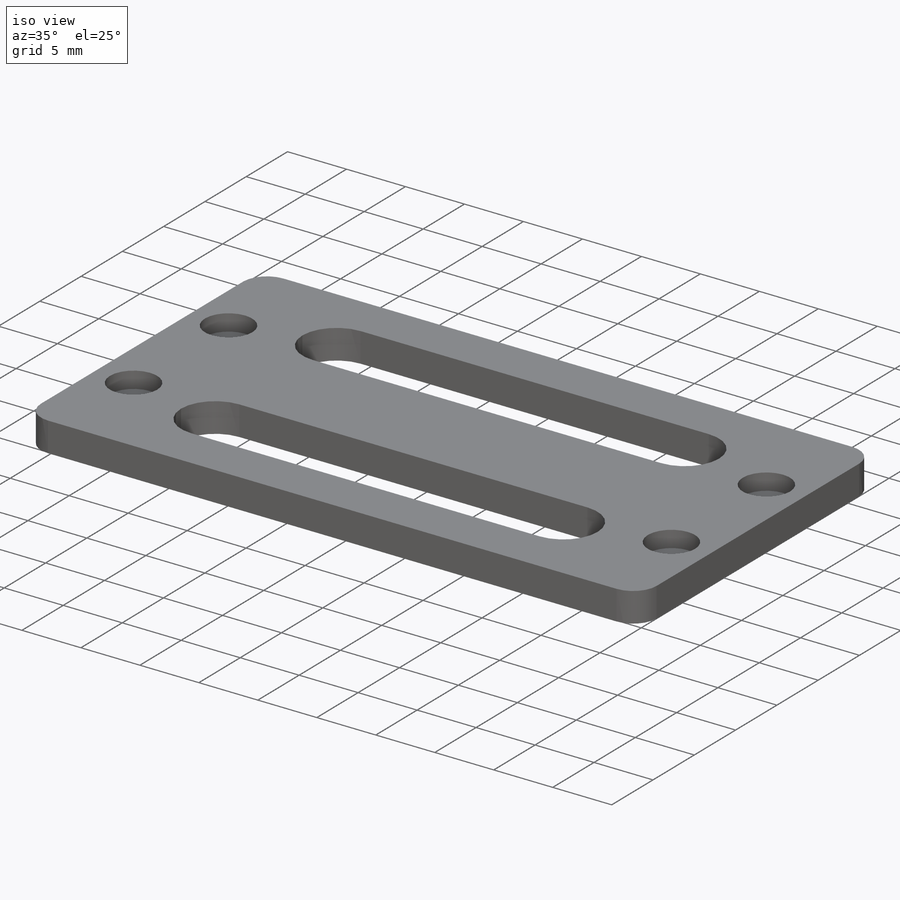
[diagram: iso view]
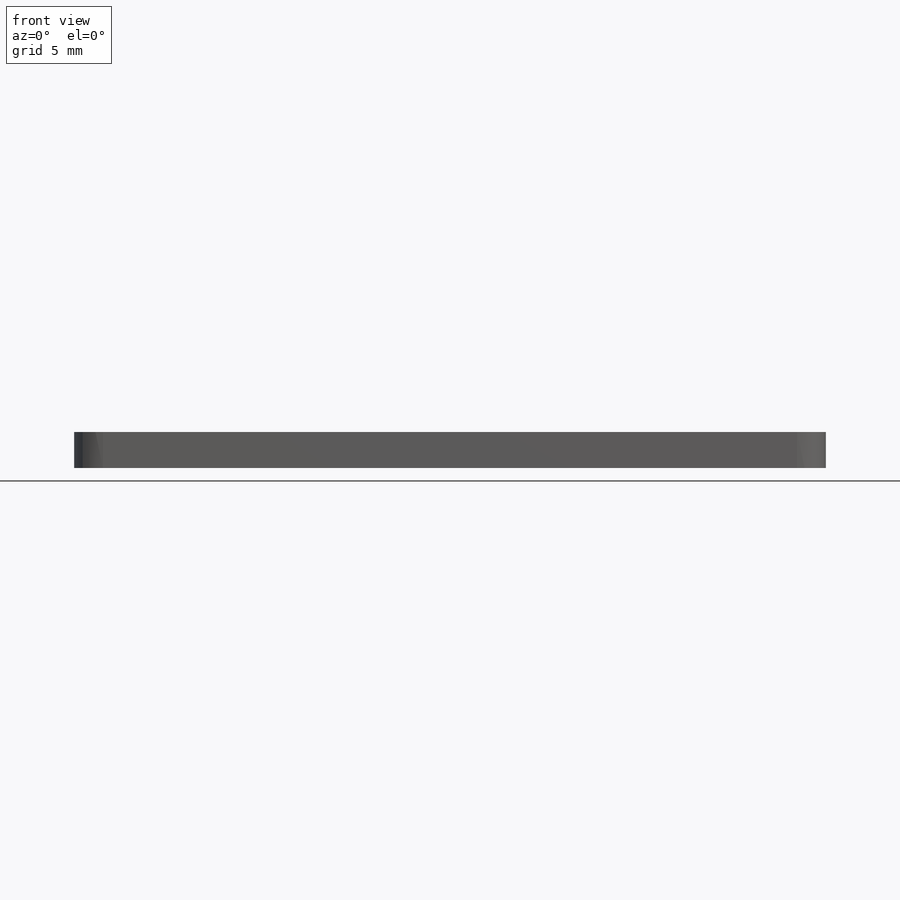
[diagram: front view]
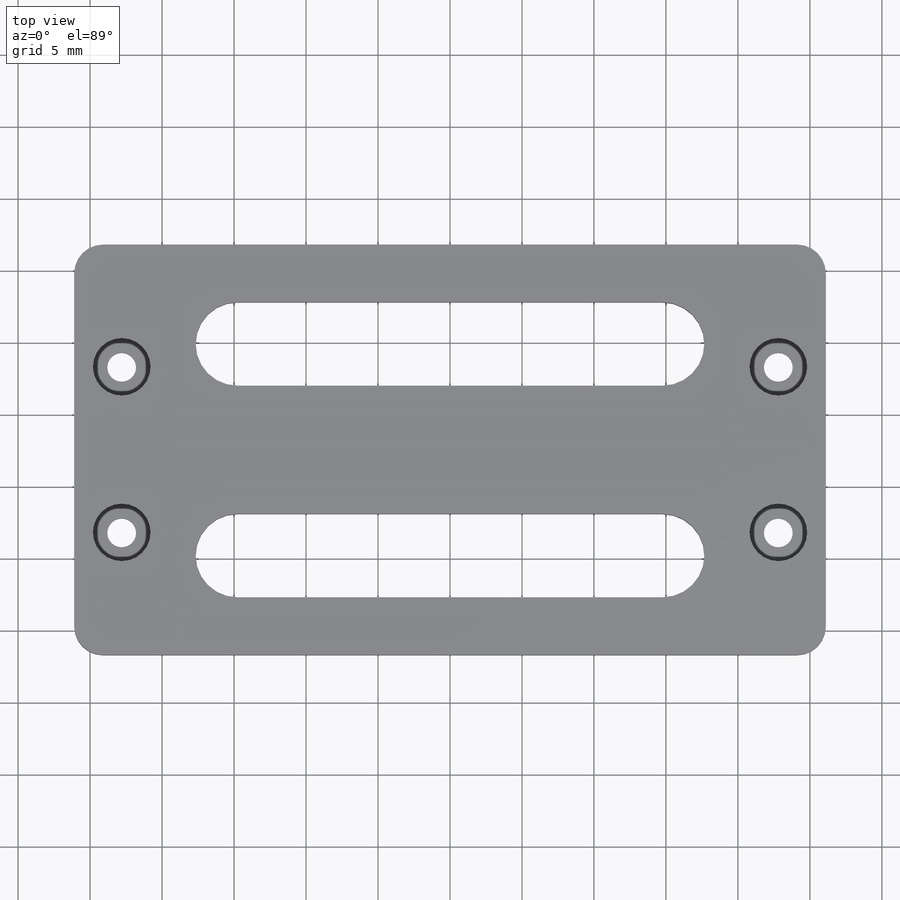
[diagram: top view]
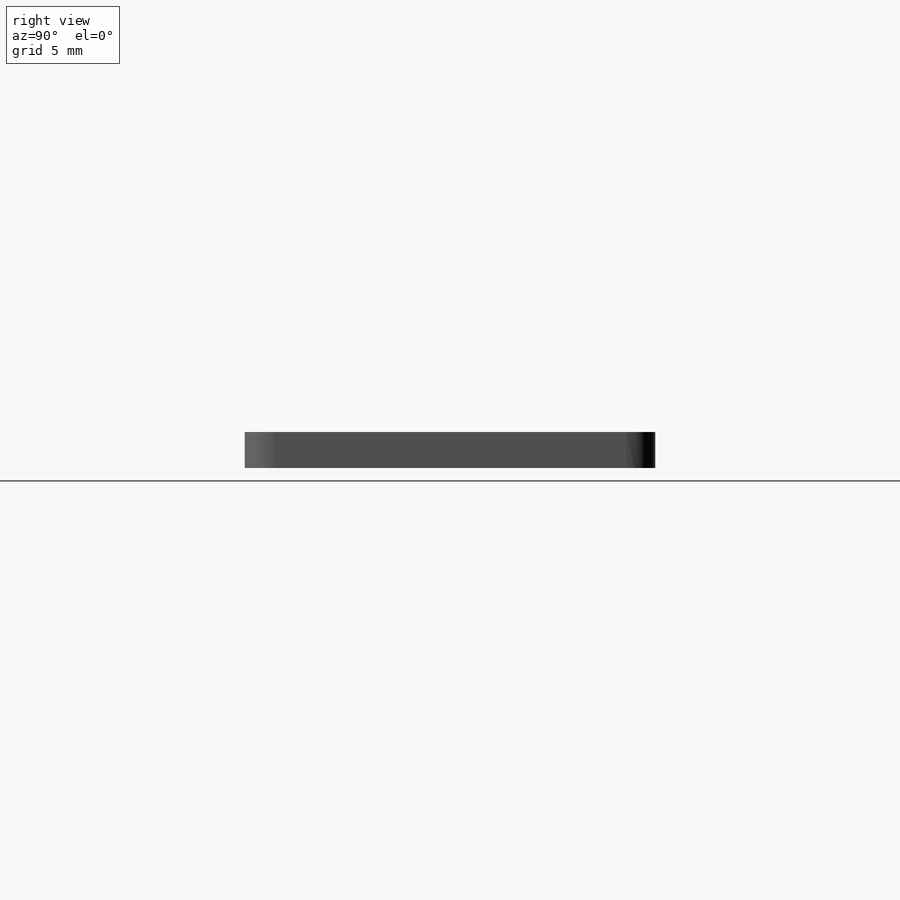
[diagram: right view]
SOLIDWORKS PART (.sldprt)
format: sldprt  version: not decoded by parser v0  size: 229,888 bytes
history: native  units: mm
features: sketch x2, fillet x2, material x1, extrude x1, cut_extrude x1 (+12 scaffold rows collapsed)
feature tree (19):
  scaffold x12  (default folders/planes/origin — collapsed)
  material  "Custom Plastic"
  sketch  "Sketch1"  dims[c1.D3=2.0mm c1.D1=28.5mm c1.D2=52.2mm c1.D4=8.5mm c1.D5=3.3mm c1.D6=8.4mm c1.D7=4.0mm c1.D8=4.0mm c1.D9=5.8mm c1.D10=~35.320637mm c1.D11=~8.439682mm c2.D5=8.5mm]
  extrude  "Boss-Extrude1"  Depth=2.5mm
  fillet  "Fillet1"  Radius=2mm
  fillet  "Fillet2"  Radius=2.9mm
  sketch  "Sketch4"  dims[D1=4.0mm D2=4.0mm D3=4.0mm D4=4.0mm]
  cut_extrude  "Cut-Extrude1"  Depth=1.4mm
decode coverage: 6 of 6 modeling features carry decoded parameters
note: ~ marks probable driven/reference dimensions
note: suppression state not decoded; provenance and decode notes live in map.json
